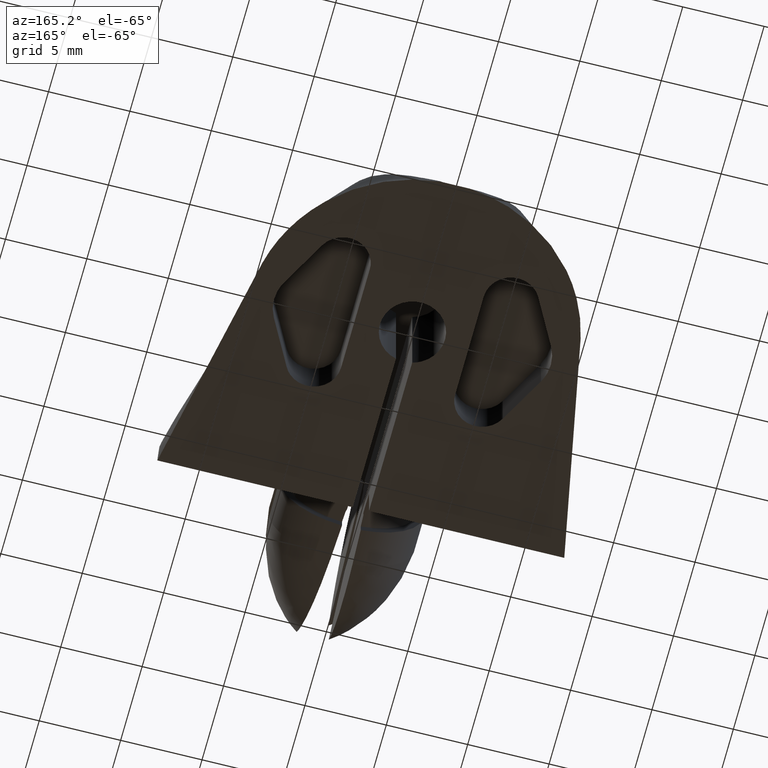
[diagram: clean part render]
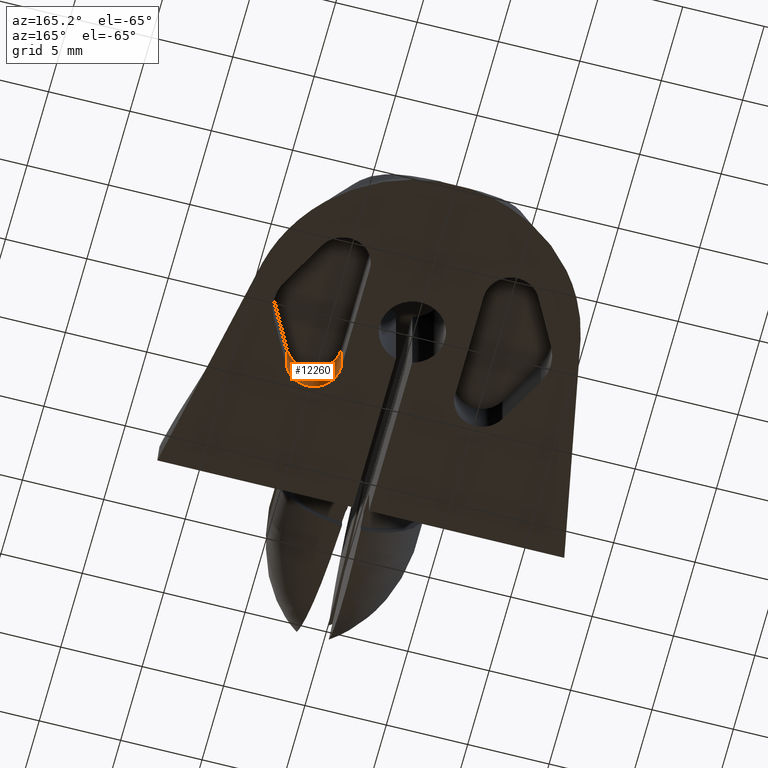
[diagram: same view with one face highlighted and labeled with its STEP entity id]
A machine part, auxiliary view. The second image highlights one B-rep face of the part: STEP entity #12260.
In plain terms, the highlighted cylindrical surface (edge-blend (fillet) strip) has radius 1.6667 mm, axis along (-0, 0, -1).
Its self-contained STEP definition (entity closure, byte-faithful):
#1594=CARTESIAN_POINT('',(3.499999999998089,-3.333333322673028,-0.000181799418392));
#1595=VERTEX_POINT('',#1594);
#1604=CARTESIAN_POINT('',(6.637254901957711,-4.117647045440663,-0.000273484611292));
#1605=VERTEX_POINT('',#1604);
#1606=CARTESIAN_POINT('',(3.499999999998089,-3.333333322673028,-0.000181799418392));
#1607=CARTESIAN_POINT('',(3.499999999998224,-3.377368276623443,-0.000183849102093));
#1608=CARTESIAN_POINT('',(3.504638472032802,-3.494351873256818,-0.000189381587695));
#1609=CARTESIAN_POINT('',(3.537384103181964,-3.718788842796258,-0.000200391561556));
#1610=CARTESIAN_POINT('',(3.628085690443839,-4.002987737738238,-0.000214986101348));
#1611=CARTESIAN_POINT('',(3.791837466656801,-4.295362415518383,-0.000230677490187));
#1612=CARTESIAN_POINT('',(4.014122452971648,-4.552882673569656,-0.000245105765963));
#1613=CARTESIAN_POINT('',(4.279442939949405,-4.757584678174467,-0.000257261259129));
#1614=CARTESIAN_POINT('',(4.584933816130359,-4.907259929989749,-0.000267145988239));
#1615=CARTESIAN_POINT('',(4.909289488087822,-4.991469343468509,-0.000274309556552));
#1616=CARTESIAN_POINT('',(5.249008911830273,-5.009303971208567,-0.000279021497271));
#1617=CARTESIAN_POINT('',(5.580399083219149,-4.959520353162375,-0.000281338660784));
#1618=CARTESIAN_POINT('',(5.899882556070800,-4.842654308338226,-0.000281666999797));
#1619=CARTESIAN_POINT('',(6.185179743794578,-4.666862129334064,-0.000280365595053));
#1620=CARTESIAN_POINT('',(6.407225517722075,-4.458407276010732,-0.000278035223637));
#1621=CARTESIAN_POINT('',(6.550124338054694,-4.269383673954508,-0.000275604371787));
#1622=CARTESIAN_POINT('',(6.614732245694050,-4.159877025905587,-0.000274086959166));
#1623=CARTESIAN_POINT('',(6.637254901957711,-4.117647045440663,-0.000273484611292));
#1624=B_SPLINE_CURVE_WITH_KNOTS('',3,(#1606,#1607,#1608,#1609,#1610,#1611,#1612,#1613,#1614,#1615,#1616,#1617,#1618,#1619,#1620,#1621,#1622,#1623),.UNSPECIFIED.,.F.,.U.,(4,1,1,1,1,1,1,1,1,1,1,1,1,1,1,4),(0.0,1.321389275001571,3.508881264368785,6.790119248440975,10.227606660428346,13.508844644633257,16.946332056683410,20.227570040924768,23.665057453012377,26.946295437364292,30.383782849765765,33.665020834860897,37.102508248379038,40.383746234794202,42.757499573422436,44.193756344491440),.UNSPECIFIED.);
#1625=EDGE_CURVE('',#1595,#1605,#1624,.T.);
#12119=CARTESIAN_POINT('',(3.500000029139102,-3.333455494148140,2.499857993389448));
#12120=VERTEX_POINT('',#12119);
#12121=CARTESIAN_POINT('',(3.499999999998089,-3.333333322673028,-0.000181799418392));
#12122=DIRECTION('',(0.000000011656223,-0.000048867812146,0.999999998805968));
#12123=VECTOR('',#12122,2.500039795792966);
#12124=LINE('',#12121,#12123);
#12125=EDGE_CURVE('',#1595,#12120,#12124,.T.);
#12226=CARTESIAN_POINT('',(6.637254931099356,-4.117769219521435,2.499819629125078));
#12227=VERTEX_POINT('',#12226);
#12228=CARTESIAN_POINT('',(6.637254901957711,-4.117647045440663,-0.000273484611292));
#12229=DIRECTION('',(0.000000011656221,-0.000048867812145,0.999999998805968));
#12230=VECTOR('',#12229,2.500093116721560);
#12231=LINE('',#12228,#12230);
#12232=EDGE_CURVE('',#1605,#12227,#12231,.T.);
#12243=CARTESIAN_POINT('',(5.166666696012257,-3.333455494142053,2.499857983962420));
#12244=DIRECTION('',(-0.000000011656221,0.000048867812144,-0.999999998805968));
#12245=DIRECTION('',(0.242535625275434,0.970142498927314,0.000047405914398));
#12246=AXIS2_PLACEMENT_3D('',#12243,#12244,#12245);
#12247=CYLINDRICAL_SURFACE('',#12246,1.666666666873171);
#12248=CARTESIAN_POINT('',(5.166666696012278,-3.333455494141560,2.499857973962420));
#12249=DIRECTION('',(-0.000000011656221,0.000048867812144,-0.999999998805968));
#12250=DIRECTION('',(0.882352940942927,-0.470588235169612,-0.000023006902402));
#12251=AXIS2_PLACEMENT_3D('',#12248,#12249,#12250);
#12252=CIRCLE('',#12251,1.666666666873171);
#12253=EDGE_CURVE('',#12227,#12120,#12252,.T.);
#12254=ORIENTED_EDGE('',*,*,#12253,.F.);
#12255=ORIENTED_EDGE('',*,*,#12232,.F.);
#12256=ORIENTED_EDGE('',*,*,#1625,.F.);
#12257=ORIENTED_EDGE('',*,*,#12125,.T.);
#12258=EDGE_LOOP('',(#12254,#12255,#12256,#12257));
#12259=FACE_OUTER_BOUND('',#12258,.T.);
#12260=ADVANCED_FACE('',(#12259),#12247,.F.);